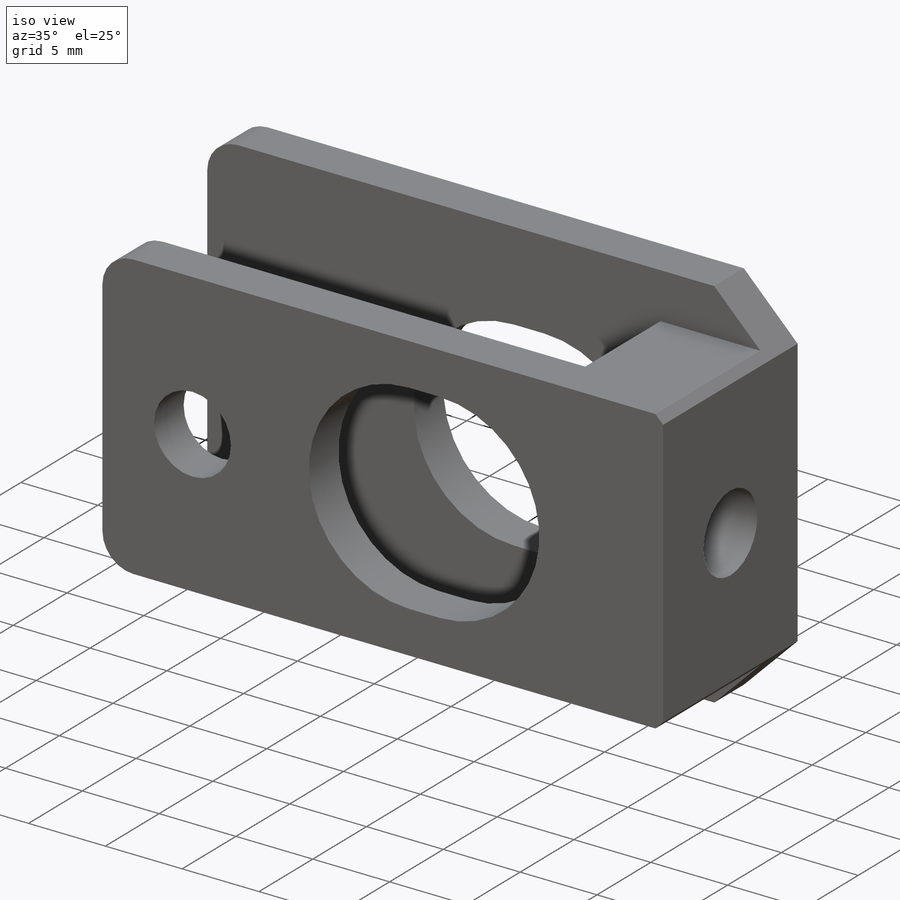
[diagram: iso view]
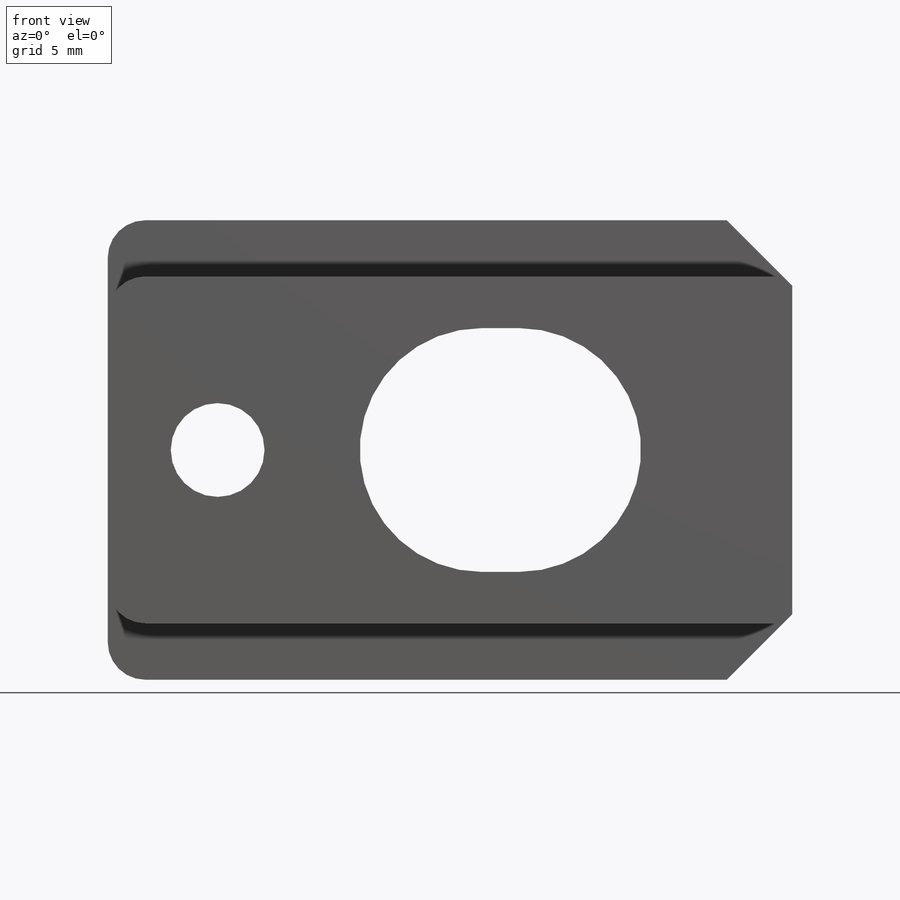
[diagram: front view]
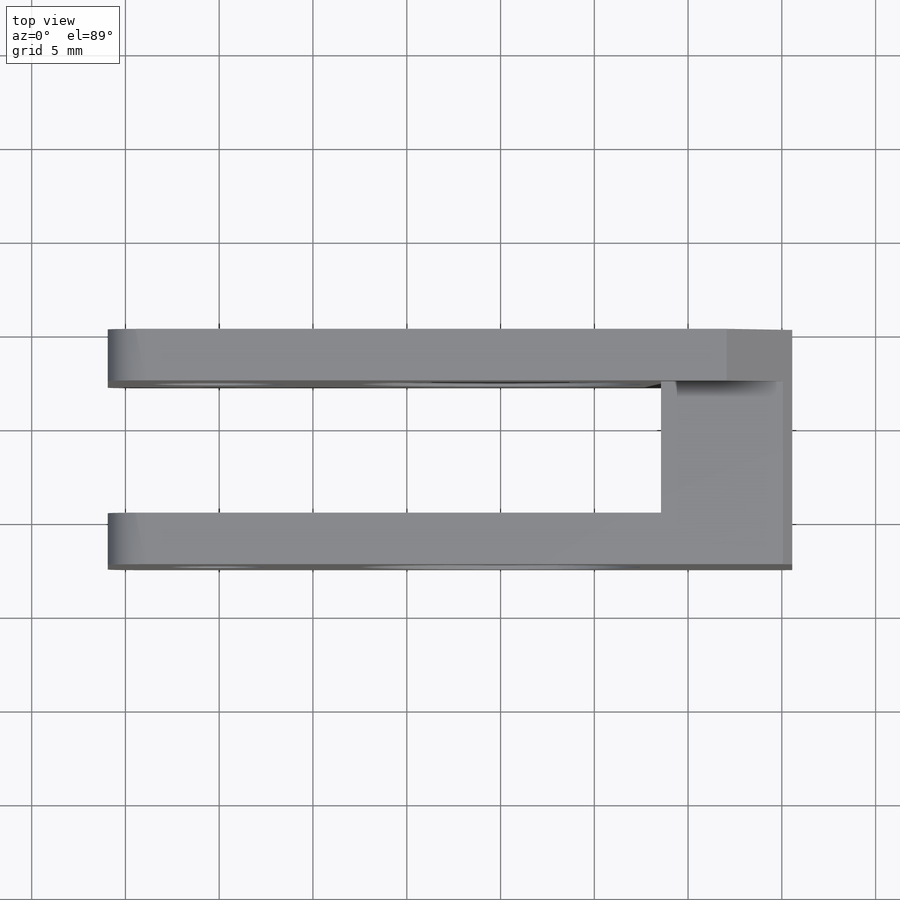
[diagram: top view]
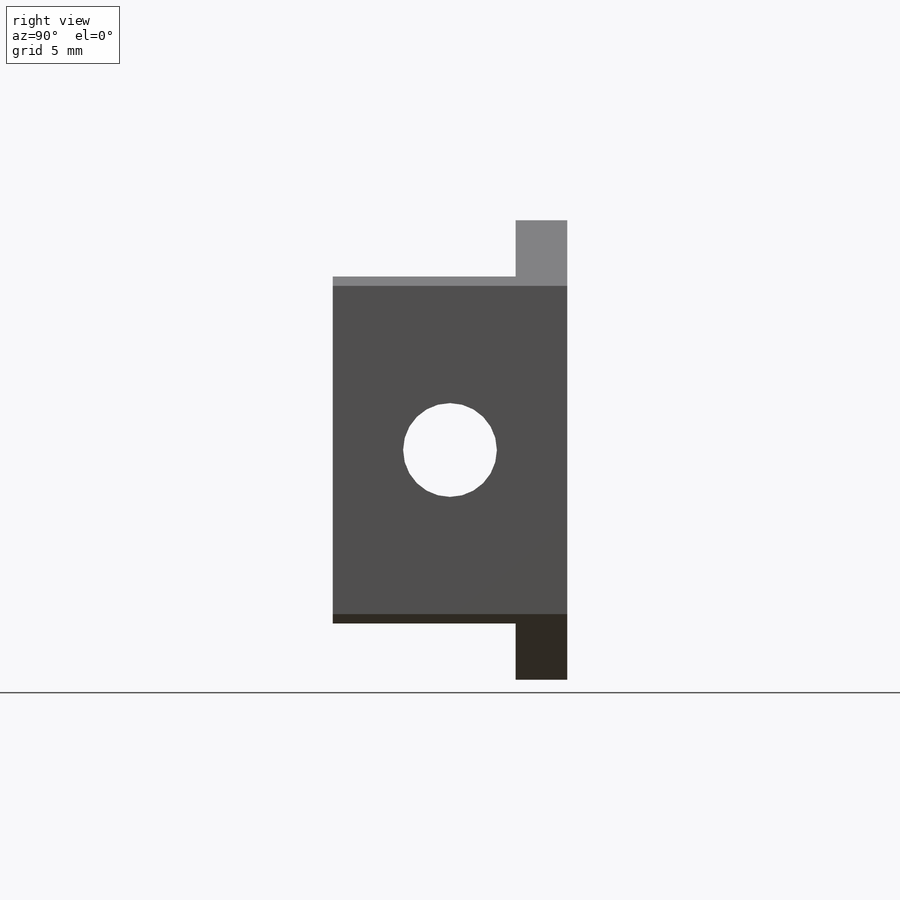
[diagram: right view]
SOLIDWORKS PART (.sldprt)
format: sldprt  version: not decoded by parser v0  size: 403,968 bytes
history: native  units: mm
features: sketch x7, extrude x4, cut_extrude x3, chamfer x2, material x1, fillet x1 (+16 scaffold rows collapsed)
feature tree (34):
  scaffold x16  (default folders/planes/origin — collapsed)
  material  "Material <not specified>"
  sketch  "Sketch1"  dims[c1.D11=6.9mm c1.D12=13.0mm c1.D13=3.0mm c1.D2=3.0mm c1.D5=3.0mm c1.D6=3.0mm c1.D7=3.0mm c2.D2=3.0mm c2.D6=15.0mm c2.D7=8.0mm c3.D6=2.0mm c3.D7=13.0mm c3.D1=~11.741399mm c3.D2=~12.163103mm c4.D1=11.75mm c4.D2=24.5mm c4.D3=~5.857235mm c4.D4=~10.377398mm c5.D3=~20.93458mm c5.D4=~22.619457mm c6.D3=~15.077345mm c6.D4=~5.857235mm c6.D5=36.5mm c6.D6=3.0mm c6.D7=3.0mm c6.D8=4.5mm c6.D9=8.0mm c6.D10=2.25mm c6.D14=0.0mm c7.D6=0.0deg c7.D8=24.5mm c7.D9=36.5mm c7.D2=36.5mm c7.D4=18.5mm c7.D5=9.25mm c8.D6=9.5mm c8.D10=12.25mm c8.D13=12.25mm]
  extrude  "Boss-Extrude1"  Depth=12.5mm
  sketch  "Sketch2"  dims[D3=7.0mm D1=3.5mm D2=3.5mm]
  cut_extrude  "Cut-Extrude1"  [1 undecoded]
  sketch  "Sketch3"  dims[D1=5.0mm]
  extrude  "Boss-Extrude3"  Depth=2.75mm
  sketch  "Sketch4"
  extrude  "Boss-Extrude4"  Depth=3mm
  sketch  "Sketch5"
  extrude  "Boss-Extrude5"  Depth=3mm
  chamfer  "Chamfer1"  Distance=3.5mm Angle=45deg
  chamfer  "Chamfer3"  Distance=3.5mm Angle=45deg
  sketch  "Sketch6"  dims[D1=6.6mm]
  cut_extrude  "Cut-Extrude2"  Depth=3mm
  sketch  "Sketch7"  dims[D1=5.0mm]
  cut_extrude  "Cut-Extrude3"  [1 undecoded]
  fillet  "Fillet1"  Radius=2mm
decode coverage: 13 of 17 modeling features carry decoded parameters
note: ~ marks probable driven/reference dimensions
note: 2 parameter values undecoded
note: suppression state not decoded; provenance and decode notes live in map.json
